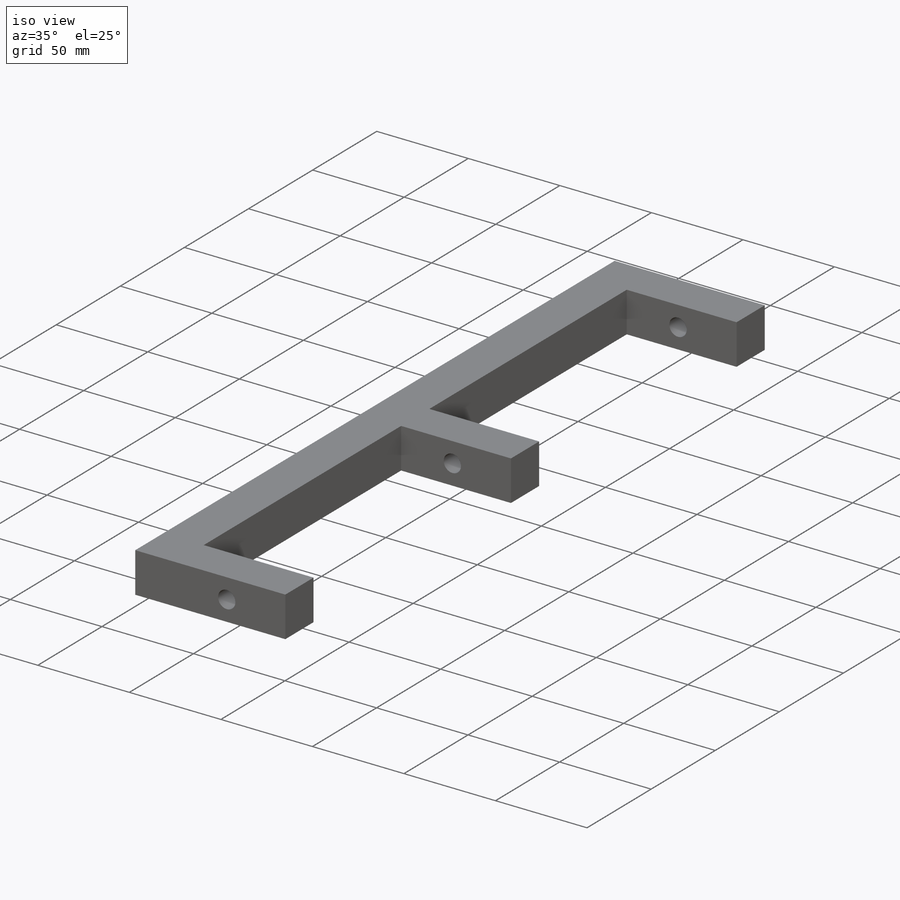
[diagram: iso view]
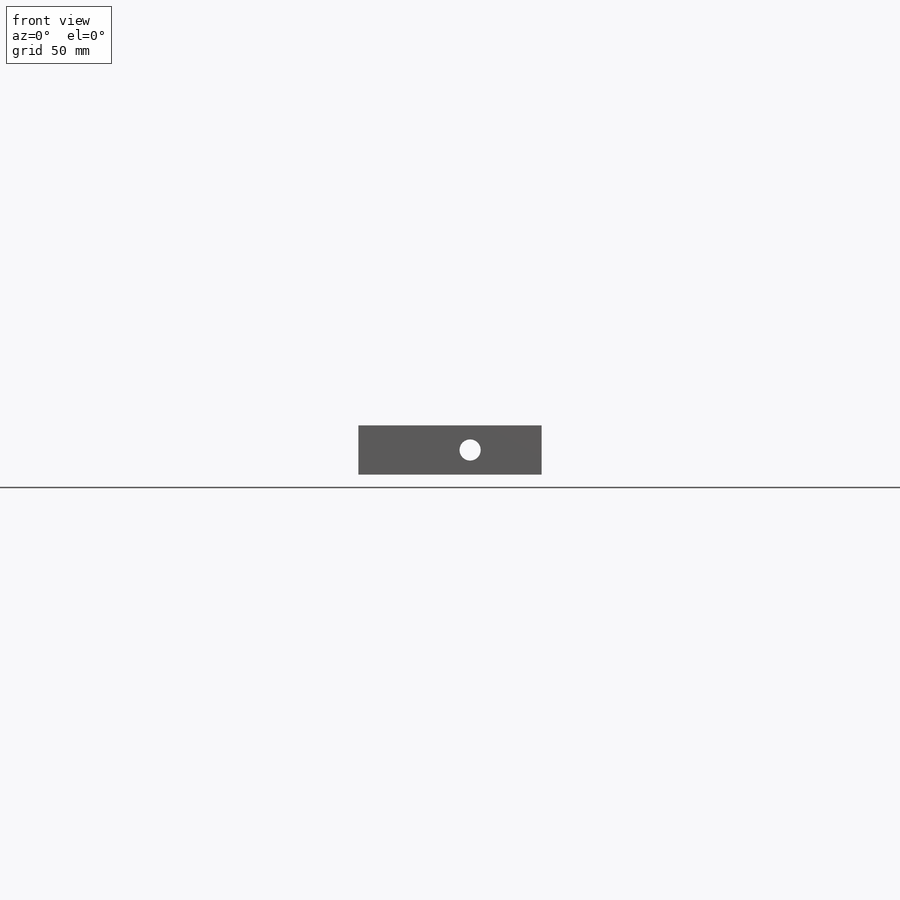
[diagram: front view]
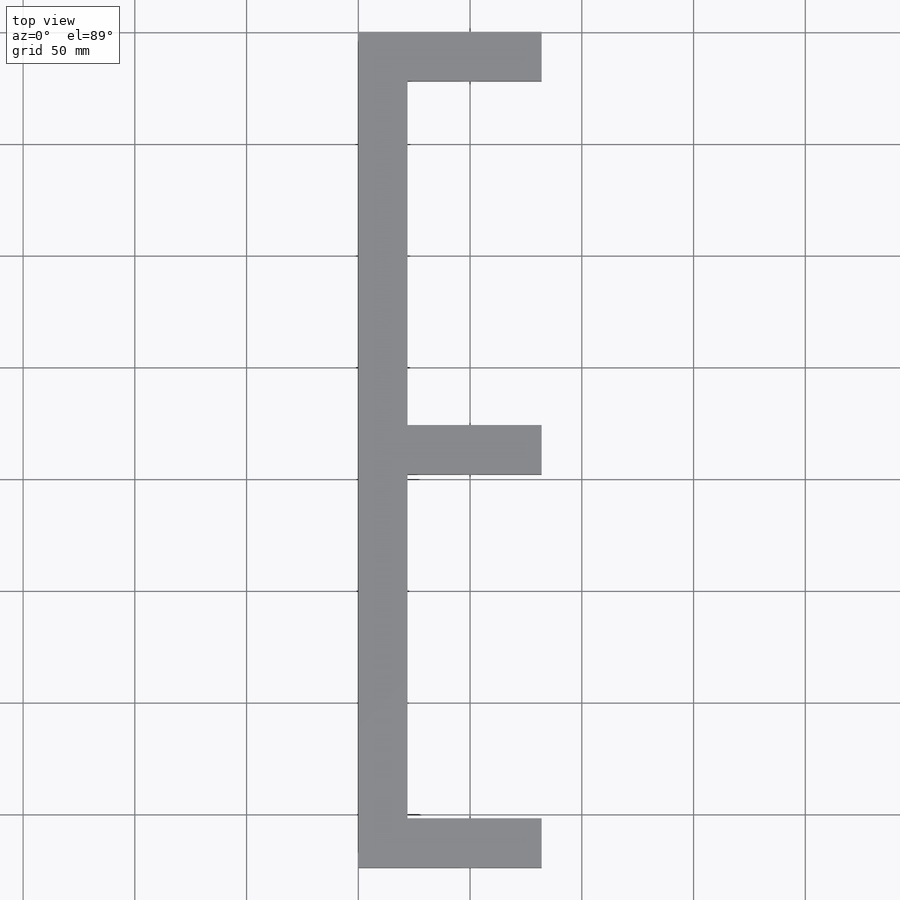
[diagram: top view]
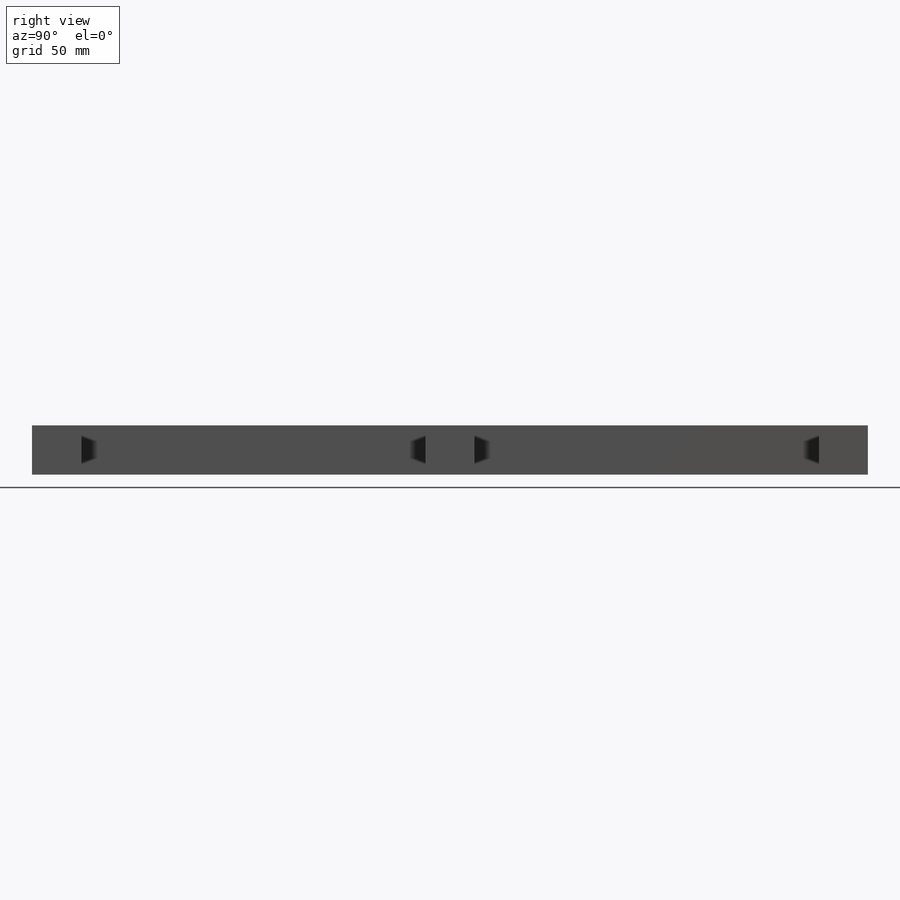
[diagram: right view]
SOLIDWORKS PART (.sldprt)
format: sldprt  version: not decoded by parser v0  size: 145,408 bytes
history: native  units: mm
features: plane x3, sketch x3, extrude x2, material x1, cut_extrude x1 (+13 scaffold rows collapsed)
feature tree (23):
  scaffold x13  (default folders/planes/origin — collapsed)
  material  "Matériau <non spécifié>"
  plane  "Plan de face"
  plane  "Plan de dessus"
  plane  "Plan de droite"
  sketch  "Esquisse1"  dims[D1=22.0mm D2=22.0mm]
  extrude  "Extrusion1"  Depth=374mm
  sketch  "Esquisse2"  dims[D1=22.0mm D2=22.0mm]
  extrude  "Extrusion2"  Depth=60mm
  sketch  "Esquisse3"  dims[D2=9.5mm D1=50.0mm]
  cut_extrude  "Extrusion3"  [1 undecoded]
decode coverage: 5 of 6 modeling features carry decoded parameters
note: 1 parameter value undecoded
note: suppression state not decoded; provenance and decode notes live in map.json
